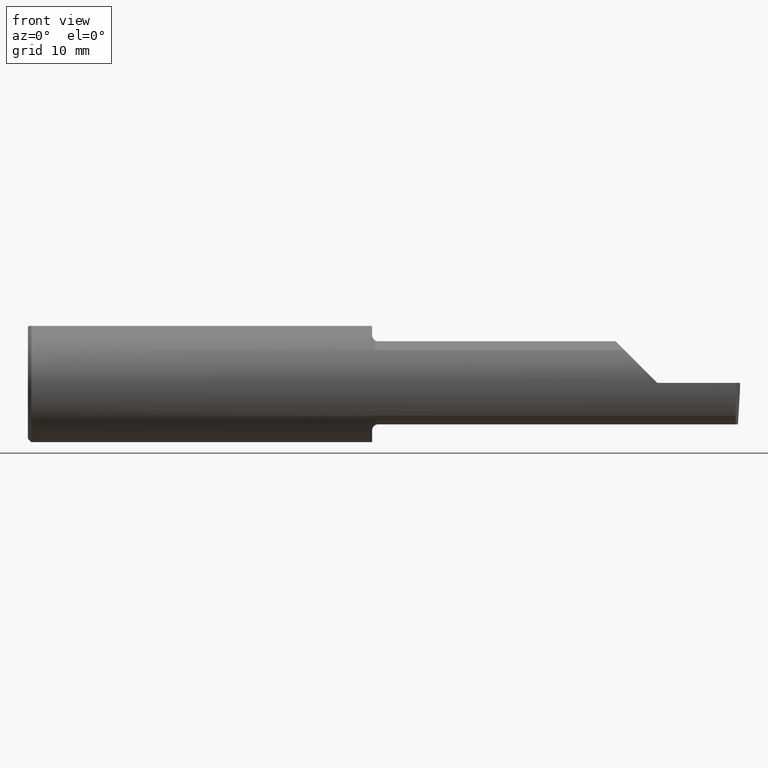
[diagram: clean part render]
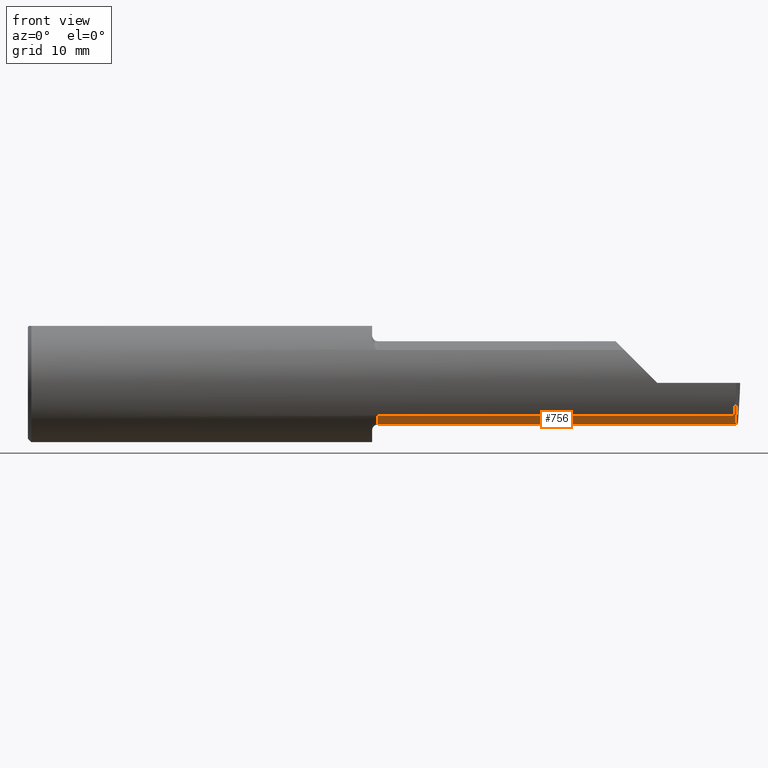
[diagram: same view with one face highlighted and labeled with its STEP entity id]
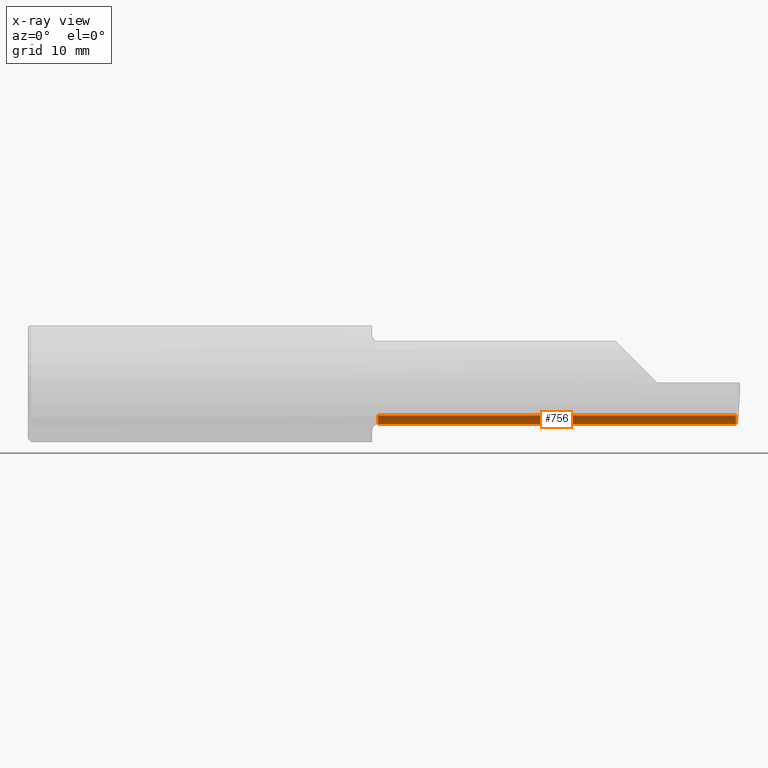
[diagram: x-ray of the same camera — body ghosted, the highlighted face saturated]
A machine part, front view. The second image highlights one B-rep face of the part: STEP entity #756.
The next image is the same camera in x-ray: the body ghosted, the highlighted face saturated — about 0% of this face is hidden behind the body in this view.
In plain terms, the highlighted cylindrical surface (partial cylindrical patch) has radius 4.445 mm, axis along (-1, -0, -0).
Its self-contained STEP definition (entity closure, byte-faithful):
#31 = DIRECTION ( 'NONE',  ( -1.000000000000000000, -0.000000000000000000, -0.000000000000000000 ) ) ;
#39 = AXIS2_PLACEMENT_3D ( 'NONE', #68, #600, #368 ) ;
#68 = CARTESIAN_POINT ( 'NONE',  ( 1.474999999999999867, -0.1008499999999999674, 0.000000000000000000 ) ) ;
#93 = DIRECTION ( 'NONE',  ( -1.000000000000000000, -0.000000000000000000, -0.000000000000000000 ) ) ;
#94 = ORIENTED_EDGE ( 'NONE', *, *, #170, .F. ) ;
#98 = LINE ( 'NONE', #109, #444 ) ;
#101 =( BOUNDED_CURVE ( )  B_SPLINE_CURVE ( 3, ( #713, #458, #469, #721 ),
 .UNSPECIFIED., .F., .T. ) 
 B_SPLINE_CURVE_WITH_KNOTS ( ( 4, 4 ),
 ( 0.2675252011803429530, 0.9270880441442505004 ),
 .UNSPECIFIED. ) 
 CURVE ( )  GEOMETRIC_REPRESENTATION_ITEM ( )  RATIONAL_B_SPLINE_CURVE ( ( 1.000000000000000000, 0.9640754331822828371, 0.9640754331822828371, 1.000000000000000000 ) ) 
 REPRESENTATION_ITEM ( '' )  );
#109 = CARTESIAN_POINT ( 'NONE',  ( 1.450000000000000178, -0.1008499999999999536, -0.1749999999999999889 ) ) ;
#118 = CIRCLE ( 'NONE', #39, 0.1749999999999999889 ) ;
#119 = ORIENTED_EDGE ( 'NONE', *, *, #387, .F. ) ;
#131 = ORIENTED_EDGE ( 'NONE', *, *, #282, .T. ) ;
#170 = EDGE_CURVE ( 'NONE', #302, #451, #98, .T. ) ;
#197 = CARTESIAN_POINT ( 'NONE',  ( 1.474999999999999867, -0.1008499999999999536, -0.1749999999999999889 ) ) ;
#215 = CARTESIAN_POINT ( 'NONE',  ( 2.854029432995154991, -0.1008500000000000091, -0.1749999999999999889 ) ) ;
#231 = EDGE_CURVE ( 'NONE', #789, #320, #101, .T. ) ;
#239 = DIRECTION ( 'NONE',  ( -1.000000000000000000, -0.000000000000000000, -0.000000000000000000 ) ) ;
#255 = AXIS2_PLACEMENT_3D ( 'NONE', #788, #239, #607 ) ;
#282 = EDGE_CURVE ( 'NONE', #789, #714, #643, .T. ) ;
#302 = VERTEX_POINT ( 'NONE', #215 ) ;
#320 = VERTEX_POINT ( 'NONE', #473 ) ;
#337 = CARTESIAN_POINT ( 'NONE',  ( 2.159000000000000252, -0.2080850024789291652, -0.1382955322609665250 ) ) ;
#368 = DIRECTION ( 'NONE',  ( 0.000000000000000000, 0.000000000000000000, 1.000000000000000000 ) ) ;
#387 = EDGE_CURVE ( 'NONE', #451, #714, #118, .T. ) ;
#423 = CARTESIAN_POINT ( 'NONE',  ( 1.474999999999999867, -0.2080850024789291375, -0.1382955322609665805 ) ) ;
#444 = VECTOR ( 'NONE', #93, 39.37007874015748143 ) ;
#451 = VERTEX_POINT ( 'NONE', #197 ) ;
#456 = EDGE_CURVE ( 'NONE', #320, #302, #786, .T. ) ;
#458 = CARTESIAN_POINT ( 'NONE',  ( 2.980931506555613453, -0.1771157075472509779, -0.1623092683844330475 ) ) ;
#469 = CARTESIAN_POINT ( 'NONE',  ( 2.981893741990786495, -0.1400387324517231025, -0.1750000000000000167 ) ) ;
#473 = CARTESIAN_POINT ( 'NONE',  ( 2.983262242683407006, -0.1008499999999999674, -0.1749999999999999889 ) ) ;
#542 = CYLINDRICAL_SURFACE ( 'NONE', #255, 0.1749999999999999889 ) ;
#578 = ORIENTED_EDGE ( 'NONE', *, *, #231, .F. ) ;
#599 = VECTOR ( 'NONE', #796, 39.37007874015748143 ) ;
#600 = DIRECTION ( 'NONE',  ( -1.000000000000000000, -0.000000000000000000, -0.000000000000000000 ) ) ;
#607 = DIRECTION ( 'NONE',  ( 0.000000000000000000, 0.000000000000000000, 1.000000000000000000 ) ) ;
#615 = VECTOR ( 'NONE', #31, 39.37007874015748143 ) ;
#621 = CARTESIAN_POINT ( 'NONE',  ( 3.000000000000000444, -0.1008499999999999813, -0.1749999999999999889 ) ) ;
#643 = LINE ( 'NONE', #337, #615 ) ;
#665 = EDGE_LOOP ( 'NONE', ( #94, #736, #578, #131, #119 ) ) ;
#673 = FACE_OUTER_BOUND ( 'NONE', #665, .T. ) ;
#713 = CARTESIAN_POINT ( 'NONE',  ( 2.980479240051444378, -0.2080850024789291652, -0.1382955322609665250 ) ) ;
#714 = VERTEX_POINT ( 'NONE', #423 ) ;
#721 = CARTESIAN_POINT ( 'NONE',  ( 2.983262242683407006, -0.1008499999999999674, -0.1749999999999999889 ) ) ;
#736 = ORIENTED_EDGE ( 'NONE', *, *, #456, .F. ) ;
#756 = ADVANCED_FACE ( 'NONE', ( #673 ), #542, .T. ) ;
#766 = CARTESIAN_POINT ( 'NONE',  ( 2.980479240051444378, -0.2080850024789291652, -0.1382955322609665250 ) ) ;
#786 = LINE ( 'NONE', #621, #599 ) ;
#788 = CARTESIAN_POINT ( 'NONE',  ( 1.450000000000000178, -0.1008499999999999674, 0.000000000000000000 ) ) ;
#789 = VERTEX_POINT ( 'NONE', #766 ) ;
#796 = DIRECTION ( 'NONE',  ( -1.000000000000000000, -0.000000000000000000, -0.000000000000000000 ) ) ;